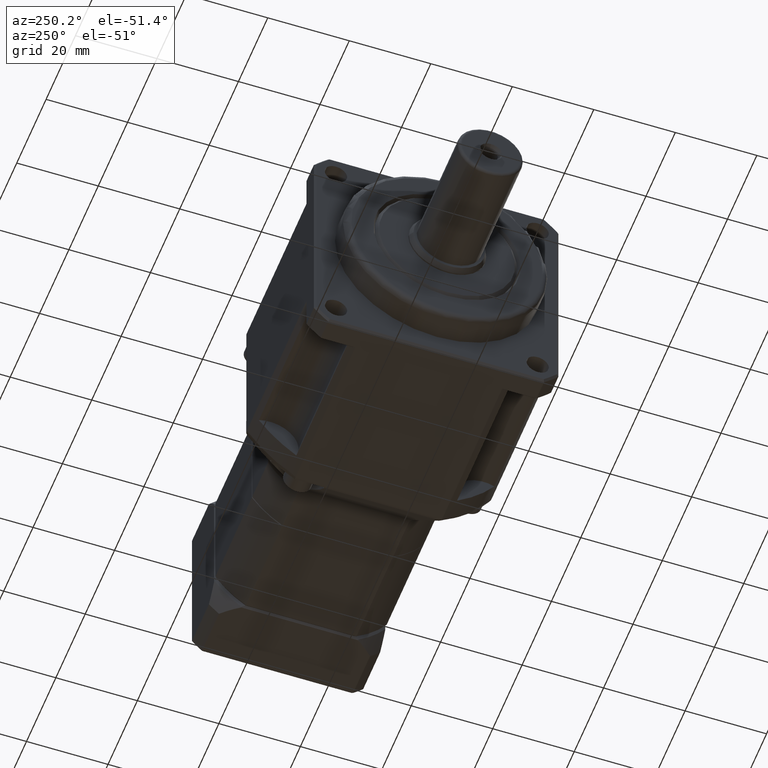
[diagram: clean part render]
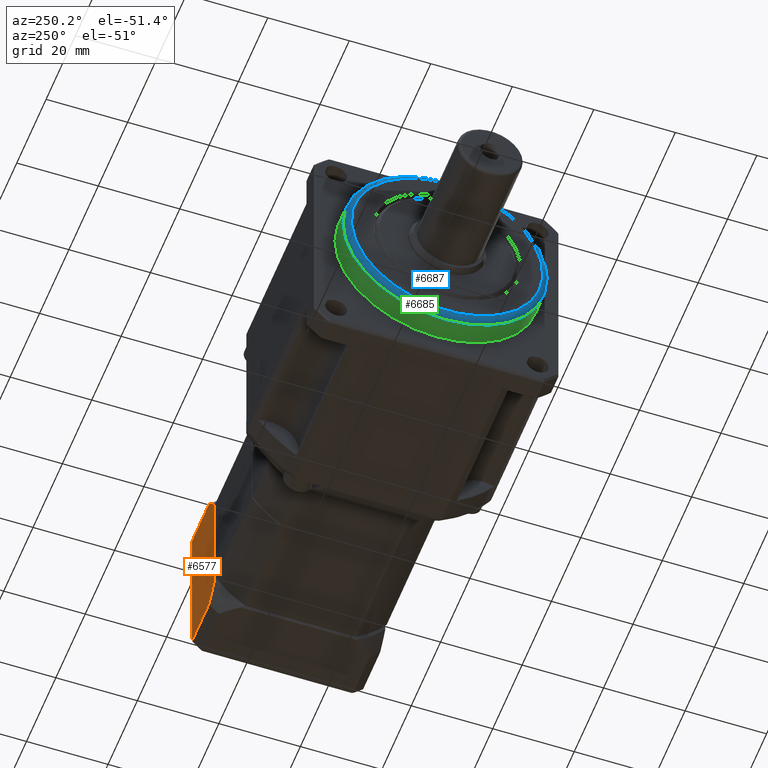
[diagram: same view with three faces highlighted in distinct colors, each labeled with its STEP entity id]
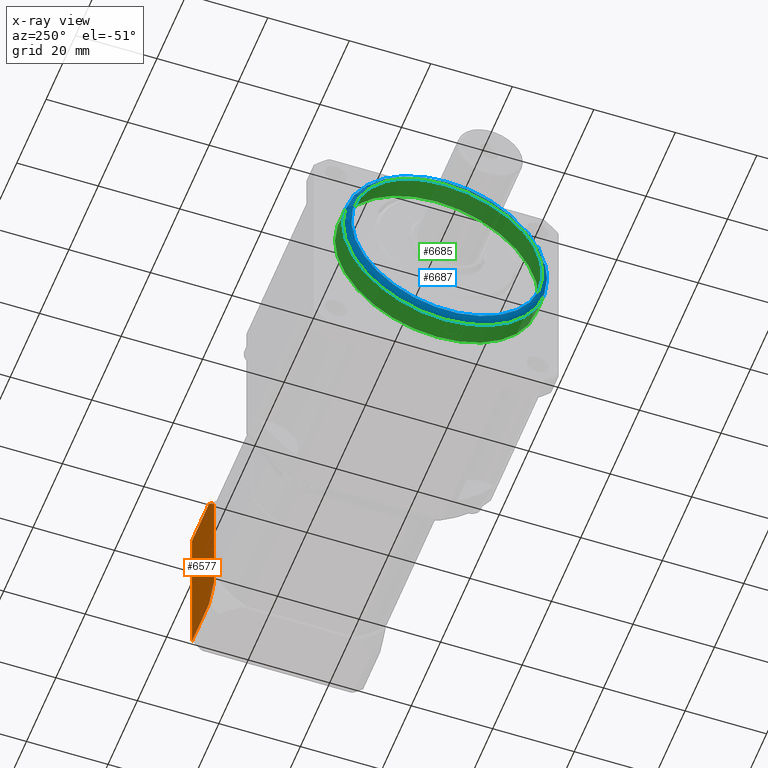
[diagram: x-ray of the same camera — body ghosted, the three highlighted faces saturated]
A machine part, auxiliary view with three faces highlighted in distinct colors.
The next image is the same camera in x-ray (body ghosted, the three faces saturated) — at least one of them is partly hidden behind the body in this view.
Their STEP definitions:

[orange] entity #6577 — the highlighted planar face has unit normal (-0, 1, 0).
#389=LINE('',#10419,#708);
#411=LINE('',#10581,#730);
#415=LINE('',#10646,#734);
#416=LINE('',#10648,#735);
#708=VECTOR('',#8330,37.0405183549043);
#730=VECTOR('',#8452,28.6829409231341);
#734=VECTOR('',#8496,11.5014761628236);
#735=VECTOR('',#8499,11.5014761628236);
#1759=FACE_OUTER_BOUND('',#2273,.T.);
#2273=EDGE_LOOP('',(#5219,#5220,#5221,#5222,#5223,#5224));
#2802=CIRCLE('',#7202,25.740404037233);
#2803=CIRCLE('',#7204,25.740404037233);
#3198=VERTEX_POINT('',#10405);
#3200=VERTEX_POINT('',#10414);
#3241=VERTEX_POINT('',#10579);
#3242=VERTEX_POINT('',#10580);
#3247=VERTEX_POINT('',#10638);
#3248=VERTEX_POINT('',#10642);
#3897=EDGE_CURVE('',#3200,#3198,#389,.T.);
#3963=EDGE_CURVE('',#3241,#3242,#411,.T.);
#3976=EDGE_CURVE('',#3241,#3247,#2802,.T.);
#3977=EDGE_CURVE('',#3248,#3242,#2803,.T.);
#3979=EDGE_CURVE('',#3200,#3248,#415,.T.);
#3980=EDGE_CURVE('',#3247,#3198,#416,.T.);
#5219=ORIENTED_EDGE('',*,*,#3897,.F.);
#5220=ORIENTED_EDGE('',*,*,#3979,.T.);
#5221=ORIENTED_EDGE('',*,*,#3977,.T.);
#5222=ORIENTED_EDGE('',*,*,#3963,.F.);
#5223=ORIENTED_EDGE('',*,*,#3976,.T.);
#5224=ORIENTED_EDGE('',*,*,#3980,.T.);
#6281=PLANE('',#7208);
#6577=ADVANCED_FACE('',(#1759),#6281,.T.);
#7202=AXIS2_PLACEMENT_3D('',#10640,#8486,#8487);
#7204=AXIS2_PLACEMENT_3D('',#10643,#8490,#8491);
#7208=AXIS2_PLACEMENT_3D('',#10649,#8500,#8501);
#8330=DIRECTION('',(-2.31276918266198E-15,-2.29842599978946E-15,1.));
#8452=DIRECTION('',(2.31276918266198E-15,2.29842599978946E-15,-1.));
#8486=DIRECTION('center_axis',(-4.30254448239918E-30,1.,2.29842599978946E-15));
#8487=DIRECTION('ref_axis',(2.31276918266198E-15,2.29842599978946E-15,-1.));
#8490=DIRECTION('center_axis',(-4.30254448239918E-30,1.,2.29842599978946E-15));
#8491=DIRECTION('ref_axis',(2.31276918266198E-15,2.29842599978946E-15,-1.));
#8496=DIRECTION('',(-1.,1.01318433854293E-30,-2.31276918266198E-15));
#8499=DIRECTION('',(1.,-1.01318433854293E-30,2.31276918266198E-15));
#8500=DIRECTION('center_axis',(-4.30254448239918E-30,1.,2.29842599978946E-15));
#8501=DIRECTION('ref_axis',(2.8421709430404E-15,2.1316282072803E-15,-1.));
#10405=CARTESIAN_POINT('',(69.6218498129889,-29.6853481373328,31.0612878505753));
#10414=CARTESIAN_POINT('',(69.621849812989,-29.6853481373327,-5.97923050432897));
#10419=CARTESIAN_POINT('',(69.6218498129889,-29.6853481373328,23.0410286731232));
#10579=CARTESIAN_POINT('',(54.6218498129889,-29.6853481373328,26.8824991346902));
#10580=CARTESIAN_POINT('',(54.621849812989,-29.6853481373327,-1.8004417884439));
#10581=CARTESIAN_POINT('',(54.6218498129889,-29.6853481373328,23.0410286731231));
#10638=CARTESIAN_POINT('',(58.1203736501653,-29.6853481373328,31.0612878505753));
#10640=CARTESIAN_POINT('Origin',(75.9968498129889,-29.6853481373327,12.5410286731232));
#10642=CARTESIAN_POINT('',(58.1203736501654,-29.6853481373327,-5.979230504329));
#10643=CARTESIAN_POINT('Origin',(75.9968498129889,-29.6853481373327,12.5410286731232));
#10646=CARTESIAN_POINT('',(70.121849812989,-29.6853481373327,-5.97923050432897));
#10648=CARTESIAN_POINT('',(70.1218498129889,-29.6853481373328,31.0612878505753));
#10649=CARTESIAN_POINT('Origin',(70.1218498129889,-29.6853481373328,33.5410286731232));

[blue] entity #6687 — the highlighted toroidal blend (fillet) surface has major radius 23.5 mm and minor (blend) radius 1.5 mm.
#980=TOROIDAL_SURFACE('',#7420,23.5,1.5);
#1511=FACE_BOUND('',#2433,.T.);
#1869=FACE_OUTER_BOUND('',#2432,.T.);
#2432=EDGE_LOOP('',(#5657));
#2433=EDGE_LOOP('',(#5658));
#2893=CIRCLE('',#7417,25.);
#2894=CIRCLE('',#7419,23.5);
#3393=VERTEX_POINT('',#11263);
#3394=VERTEX_POINT('',#11266);
#4199=EDGE_CURVE('',#3393,#3393,#2893,.T.);
#4200=EDGE_CURVE('',#3394,#3394,#2894,.T.);
#5657=ORIENTED_EDGE('',*,*,#4199,.T.);
#5658=ORIENTED_EDGE('',*,*,#4200,.T.);
#6687=ADVANCED_FACE('',(#1869,#1511),#980,.T.);
#7417=AXIS2_PLACEMENT_3D('',#11264,#8991,#8992);
#7419=AXIS2_PLACEMENT_3D('',#11267,#8995,#8996);
#7420=AXIS2_PLACEMENT_3D('',#11268,#8997,#8998);
#8991=DIRECTION('center_axis',(-1.,-2.77555756156293E-17,-1.62131466612012E-16));
#8992=DIRECTION('ref_axis',(1.62131466612012E-16,-6.93889390390531E-17,
-1.));
#8995=DIRECTION('center_axis',(1.,2.77555756156293E-17,1.62131466612012E-16));
#8996=DIRECTION('ref_axis',(1.62131466612012E-16,-6.93889390390531E-17,
-1.));
#8997=DIRECTION('center_axis',(-1.,-2.77555756156293E-17,-1.62131466612012E-16));
#8998=DIRECTION('ref_axis',(-2.8421709430404E-16,0.,1.));
#11263=CARTESIAN_POINT('',(-44.3781501870111,-50.6853481373327,37.541028673123));
#11264=CARTESIAN_POINT('Origin',(-44.3781501870111,-50.6853481373327,12.541028673123));
#11266=CARTESIAN_POINT('',(-45.8781501870111,-50.6853481373327,36.041028673123));
#11267=CARTESIAN_POINT('Origin',(-45.8781501870111,-50.6853481373327,12.541028673123));
#11268=CARTESIAN_POINT('Origin',(-44.3781501870111,-50.6853481373327,12.541028673123));

[green] entity #6685 — the highlighted cylindrical surface (bore or boss wall) has radius 25 mm, axis along (-1, -0, -0).
#1346=CYLINDRICAL_SURFACE('',#7416,25.);
#1509=FACE_BOUND('',#2429,.T.);
#1867=FACE_OUTER_BOUND('',#2428,.T.);
#2428=EDGE_LOOP('',(#5653));
#2429=EDGE_LOOP('',(#5654));
#2883=CIRCLE('',#7377,25.);
#2893=CIRCLE('',#7417,25.);
#3370=VERTEX_POINT('',#11090);
#3393=VERTEX_POINT('',#11263);
#4145=EDGE_CURVE('',#3370,#3370,#2883,.T.);
#4199=EDGE_CURVE('',#3393,#3393,#2893,.T.);
#5653=ORIENTED_EDGE('',*,*,#4145,.F.);
#5654=ORIENTED_EDGE('',*,*,#4199,.F.);
#6685=ADVANCED_FACE('',(#1867,#1509),#1346,.T.);
#7377=AXIS2_PLACEMENT_3D('',#11091,#8889,#8890);
#7416=AXIS2_PLACEMENT_3D('',#11262,#8989,#8990);
#7417=AXIS2_PLACEMENT_3D('',#11264,#8991,#8992);
#8889=DIRECTION('center_axis',(1.,2.77555756156293E-17,1.62131466612012E-16));
#8890=DIRECTION('ref_axis',(1.62131466612012E-16,-6.93889390390531E-17,
-1.));
#8989=DIRECTION('center_axis',(-1.,-2.77555756156293E-17,-1.62131466612012E-16));
#8990=DIRECTION('ref_axis',(1.62131466612012E-16,-6.93889390390531E-17,
-1.));
#8991=DIRECTION('center_axis',(-1.,-2.77555756156293E-17,-1.62131466612012E-16));
#8992=DIRECTION('ref_axis',(1.62131466612012E-16,-6.93889390390531E-17,
-1.));
#11090=CARTESIAN_POINT('',(-38.8781501870111,-50.6853481373327,37.541028673123));
#11091=CARTESIAN_POINT('Origin',(-38.8781501870111,-50.6853481373327,12.541028673123));
#11262=CARTESIAN_POINT('Origin',(-38.8781501870111,-50.6853481373327,12.541028673123));
#11263=CARTESIAN_POINT('',(-44.3781501870111,-50.6853481373327,37.541028673123));
#11264=CARTESIAN_POINT('Origin',(-44.3781501870111,-50.6853481373327,12.541028673123));